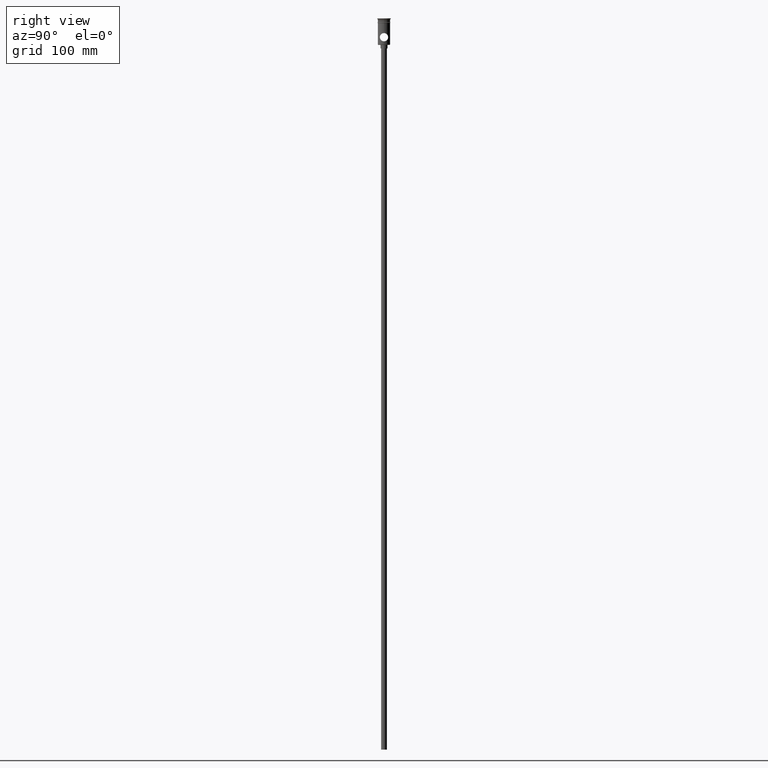
[diagram: clean part render]
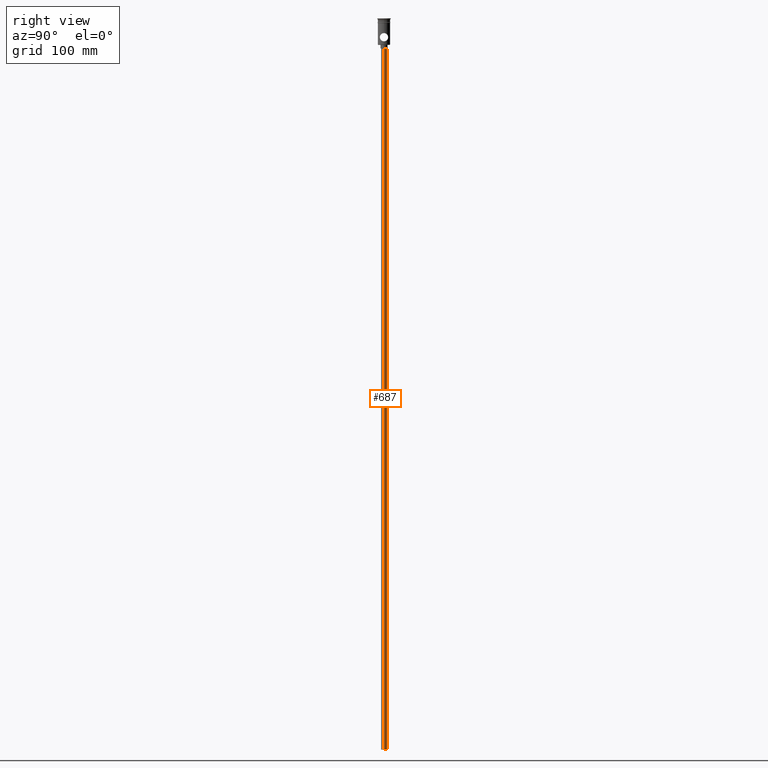
[diagram: same view with one face highlighted and labeled with its STEP entity id]
A machine part, right view. The second image highlights one B-rep face of the part: STEP entity #687.
In plain terms, the highlighted cylindrical surface (edge-blend (fillet) strip) has radius 2.5 mm, axis along (-0, -0, 1).
Its self-contained STEP definition (entity closure, byte-faithful):
#44 = CARTESIAN_POINT ( 'NONE',  ( 0.000000000000000000, 0.000000000000000000, -622.4999999999998863 ) ) ;
#70 = EDGE_CURVE ( 'NONE', #1039, #485, #1016, .T. ) ;
#85 = ORIENTED_EDGE ( 'NONE', *, *, #70, .T. ) ;
#146 = EDGE_CURVE ( 'NONE', #1039, #1313, #955, .T. ) ;
#147 = AXIS2_PLACEMENT_3D ( 'NONE', #781, #1244, #181 ) ;
#181 = DIRECTION ( 'NONE',  ( -1.000000000000000000, 0.000000000000000000, 0.000000000000000000 ) ) ;
#195 = DIRECTION ( 'NONE',  ( 1.000000000000000000, 0.000000000000000000, 0.000000000000000000 ) ) ;
#306 = CARTESIAN_POINT ( 'NONE',  ( 2.500000000000000000, 0.000000000000000000, -622.4999999999998863 ) ) ;
#347 = EDGE_CURVE ( 'NONE', #485, #956, #811, .T. ) ;
#413 = EDGE_LOOP ( 'NONE', ( #1233, #85, #1111, #926 ) ) ;
#437 = AXIS2_PLACEMENT_3D ( 'NONE', #44, #1191, #819 ) ;
#444 = DIRECTION ( 'NONE',  ( -0.000000000000000000, -0.000000000000000000, 1.000000000000000000 ) ) ;
#485 = VERTEX_POINT ( 'NONE', #903 ) ;
#507 = CARTESIAN_POINT ( 'NONE',  ( 2.500000000000000000, 0.000000000000000000, -622.4999999999998863 ) ) ;
#604 = EDGE_CURVE ( 'NONE', #1313, #956, #1396, .T. ) ;
#627 = FACE_OUTER_BOUND ( 'NONE', #413, .T. ) ;
#687 = ADVANCED_FACE ( 'NONE', ( #627 ), #1091, .T. ) ;
#755 = CARTESIAN_POINT ( 'NONE',  ( 0.000000000000000000, 0.000000000000000000, -622.4999999999998863 ) ) ;
#761 = AXIS2_PLACEMENT_3D ( 'NONE', #755, #444, #195 ) ;
#781 = CARTESIAN_POINT ( 'NONE',  ( 0.000000000000000000, 0.000000000000000000, -25.50000000000000000 ) ) ;
#811 = CIRCLE ( 'NONE', #147, 2.500000000000000000 ) ;
#819 = DIRECTION ( 'NONE',  ( -1.000000000000000000, 0.000000000000000000, 0.000000000000000000 ) ) ;
#861 = VECTOR ( 'NONE', #1415, 1000.000000000000000 ) ;
#903 = CARTESIAN_POINT ( 'NONE',  ( -2.500000000000000000, 3.061616997868383141E-16, -25.50000000000000000 ) ) ;
#926 = ORIENTED_EDGE ( 'NONE', *, *, #604, .F. ) ;
#955 = CIRCLE ( 'NONE', #437, 2.500000000000000000 ) ;
#956 = VERTEX_POINT ( 'NONE', #1451 ) ;
#1016 = LINE ( 'NONE', #1037, #1289 ) ;
#1024 = DIRECTION ( 'NONE',  ( -0.000000000000000000, -0.000000000000000000, 1.000000000000000000 ) ) ;
#1037 = CARTESIAN_POINT ( 'NONE',  ( -2.500000000000000000, 3.061616997868383141E-16, -622.4999999999998863 ) ) ;
#1039 = VERTEX_POINT ( 'NONE', #1040 ) ;
#1040 = CARTESIAN_POINT ( 'NONE',  ( -2.500000000000000000, 3.061616997868383141E-16, -622.4999999999998863 ) ) ;
#1091 = CYLINDRICAL_SURFACE ( 'NONE', #761, 2.500000000000000000 ) ;
#1111 = ORIENTED_EDGE ( 'NONE', *, *, #347, .T. ) ;
#1191 = DIRECTION ( 'NONE',  ( 0.000000000000000000, 0.000000000000000000, -1.000000000000000000 ) ) ;
#1233 = ORIENTED_EDGE ( 'NONE', *, *, #146, .F. ) ;
#1244 = DIRECTION ( 'NONE',  ( 0.000000000000000000, 0.000000000000000000, -1.000000000000000000 ) ) ;
#1289 = VECTOR ( 'NONE', #1024, 1000.000000000000000 ) ;
#1313 = VERTEX_POINT ( 'NONE', #306 ) ;
#1396 = LINE ( 'NONE', #507, #861 ) ;
#1415 = DIRECTION ( 'NONE',  ( -0.000000000000000000, -0.000000000000000000, 1.000000000000000000 ) ) ;
#1451 = CARTESIAN_POINT ( 'NONE',  ( 2.500000000000000000, 0.000000000000000000, -25.50000000000000000 ) ) ;